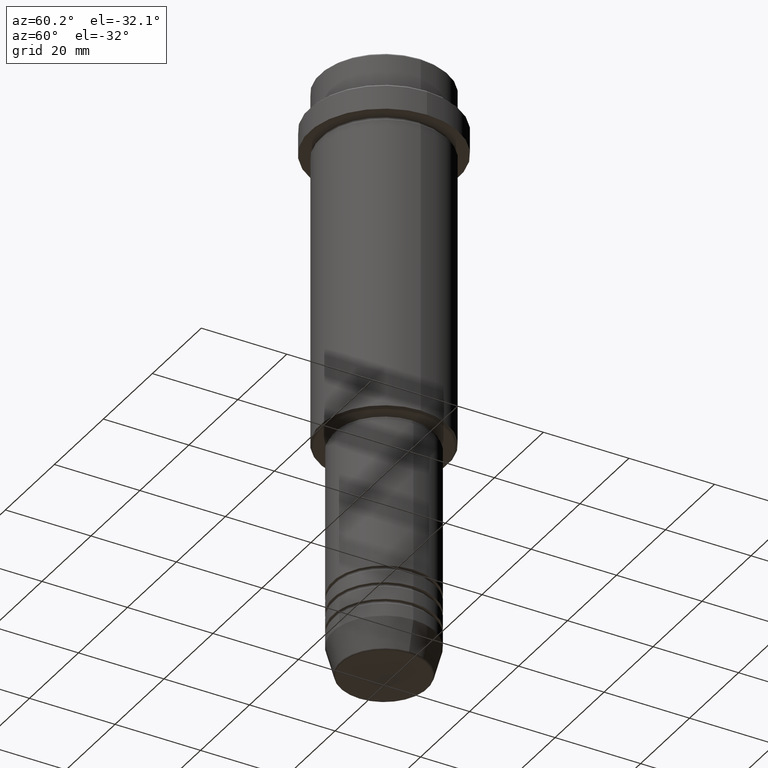
[diagram: clean part render]
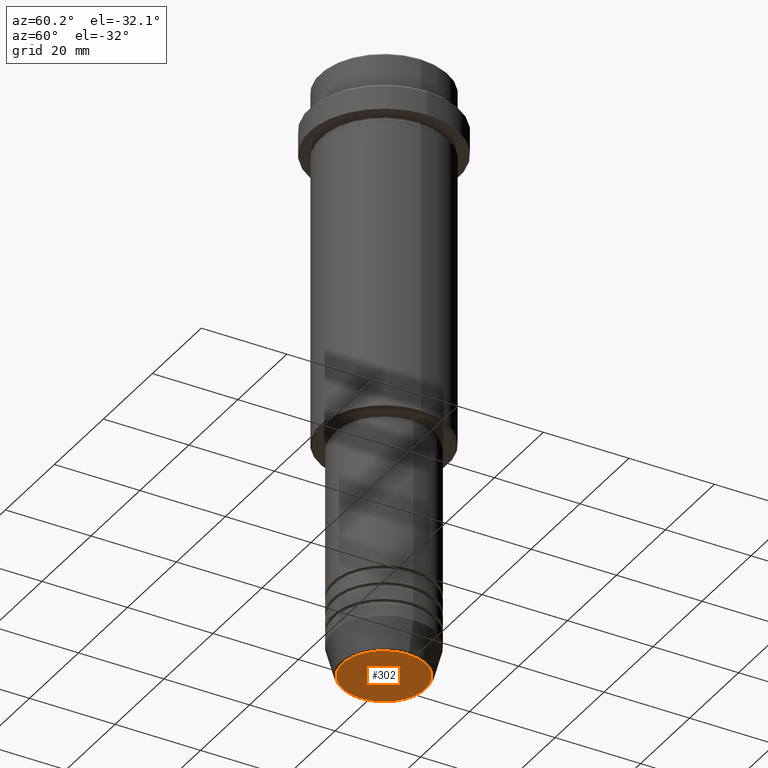
[diagram: same view with one face highlighted and labeled with its STEP entity id]
A machine part, auxiliary view. The second image highlights one B-rep face of the part: STEP entity #302.
In plain terms, the highlighted planar face has unit normal (0, -0, 1).
Its self-contained STEP definition (entity closure, byte-faithful):
#2 = FACE_OUTER_BOUND ( 'NONE', #294, .T. ) ;
#46 = DIRECTION ( 'NONE',  ( 0.000000000000000000, 0.000000000000000000, -1.000000000000000000 ) ) ;
#243 = CIRCLE ( 'NONE', #1248, 9.740692158992658278 ) ;
#294 = EDGE_LOOP ( 'NONE', ( #1270, #491 ) ) ;
#302 = ADVANCED_FACE ( 'NONE', ( #2 ), #1013, .F. ) ;
#339 = CARTESIAN_POINT ( 'NONE',  ( 0.000000000000000000, 0.000000000000000000, -140.0000000000000000 ) ) ;
#424 = DIRECTION ( 'NONE',  ( 1.000000000000000000, 0.000000000000000000, 0.000000000000000000 ) ) ;
#450 = DIRECTION ( 'NONE',  ( 0.000000000000000000, -0.000000000000000000, 1.000000000000000000 ) ) ;
#454 = CARTESIAN_POINT ( 'NONE',  ( -9.740692158992658278, 1.222463696683474999E-15, -140.0000000000000000 ) ) ;
#491 = ORIENTED_EDGE ( 'NONE', *, *, #540, .T. ) ;
#540 = EDGE_CURVE ( 'NONE', #1064, #917, #1066, .T. ) ;
#603 = DIRECTION ( 'NONE',  ( 1.000000000000000000, 0.000000000000000000, 0.000000000000000000 ) ) ;
#624 = CARTESIAN_POINT ( 'NONE',  ( 0.000000000000000000, 0.000000000000000000, -140.0000000000000000 ) ) ;
#644 = DIRECTION ( 'NONE',  ( 0.000000000000000000, 0.000000000000000000, -1.000000000000000000 ) ) ;
#906 = AXIS2_PLACEMENT_3D ( 'NONE', #624, #46, #603 ) ;
#917 = VERTEX_POINT ( 'NONE', #961 ) ;
#961 = CARTESIAN_POINT ( 'NONE',  ( 9.740692158992658278, 0.000000000000000000, -140.0000000000000000 ) ) ;
#1000 = DIRECTION ( 'NONE',  ( 1.000000000000000000, 0.000000000000000000, 0.000000000000000000 ) ) ;
#1013 = PLANE ( 'NONE',  #1129 ) ;
#1064 = VERTEX_POINT ( 'NONE', #454 ) ;
#1066 = CIRCLE ( 'NONE', #906, 9.740692158992658278 ) ;
#1102 = EDGE_CURVE ( 'NONE', #917, #1064, #243, .T. ) ;
#1129 = AXIS2_PLACEMENT_3D ( 'NONE', #1338, #450, #1000 ) ;
#1248 = AXIS2_PLACEMENT_3D ( 'NONE', #339, #644, #424 ) ;
#1270 = ORIENTED_EDGE ( 'NONE', *, *, #1102, .T. ) ;
#1338 = CARTESIAN_POINT ( 'NONE',  ( 0.000000000000000000, 0.000000000000000000, -140.0000000000000000 ) ) ;